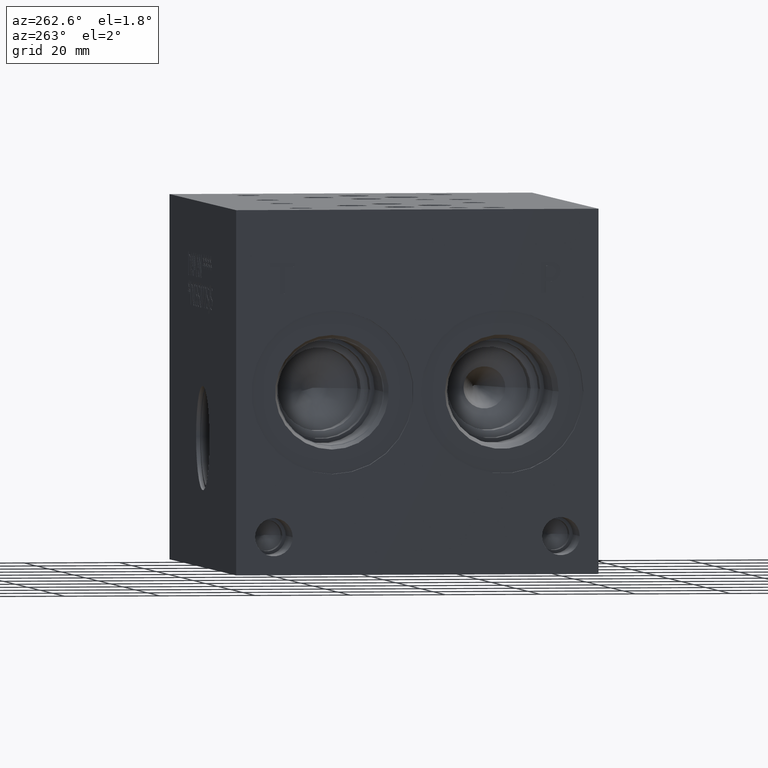
[diagram: clean part render]
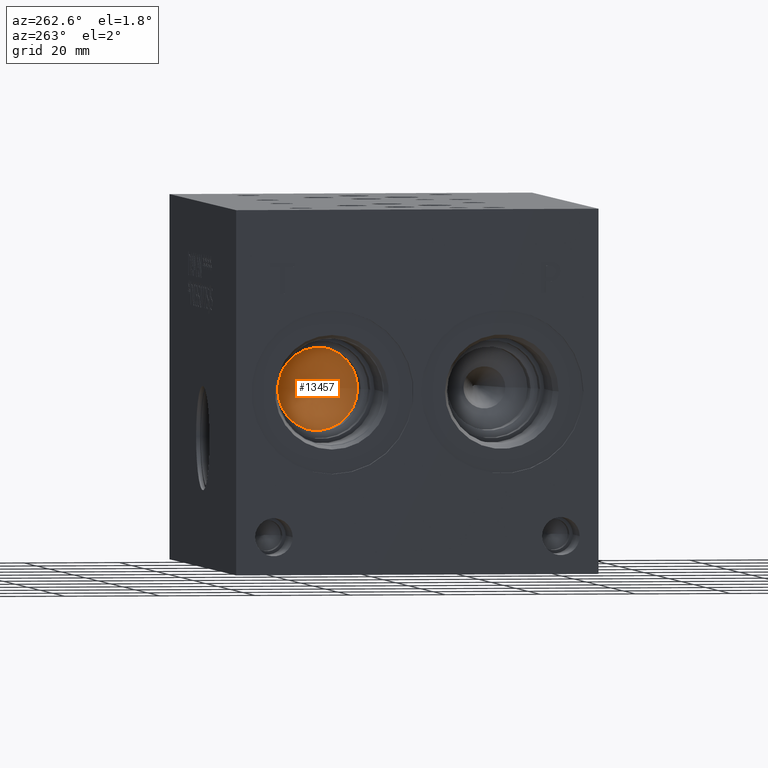
[diagram: same view with one face highlighted and labeled with its STEP entity id]
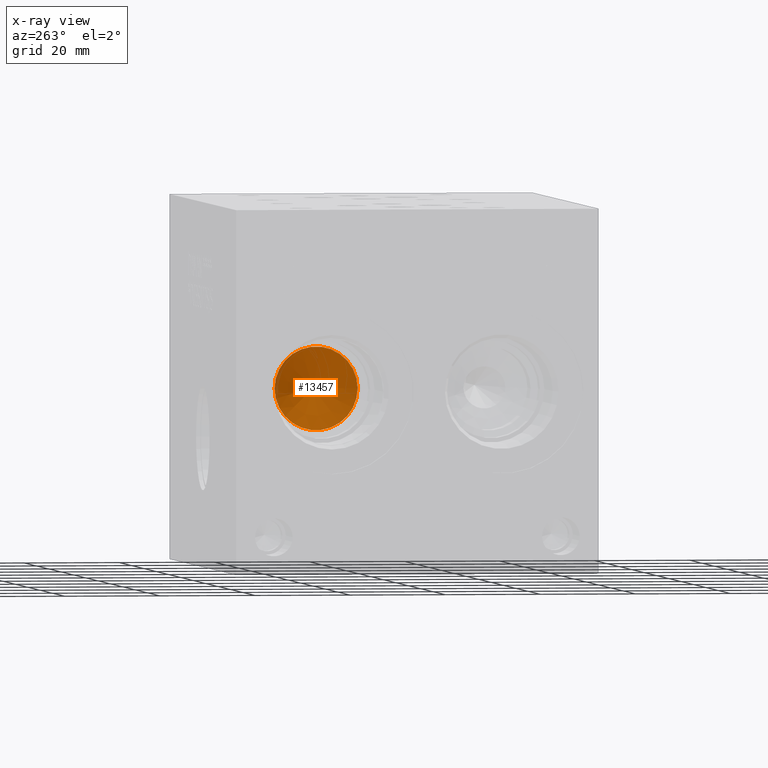
[diagram: x-ray of the same camera — body ghosted, the highlighted face saturated]
A machine part, auxiliary view. The second image highlights one B-rep face of the part: STEP entity #13457.
The next image is the same camera in x-ray: the body ghosted, the highlighted face saturated — about 3% of this face is hidden behind the body in this view.
In plain terms, the highlighted conical surface has half-angle 60 deg.
Its self-contained STEP definition (entity closure, byte-faithful):
#74=CONICAL_SURFACE('',#14287,4.3688,1.0471975511966);
#471=CIRCLE('',#14288,8.7376);
#472=CIRCLE('',#14289,8.7376);
#1841=FACE_OUTER_BOUND('',#2629,.T.);
#2629=EDGE_LOOP('',(#11800,#11801,#11802,#11803));
#3833=LINE('',#23400,#5009);
#5009=VECTOR('',#17093,4.3688);
#6286=VERTEX_POINT('',#23396);
#6287=VERTEX_POINT('',#23397);
#6288=VERTEX_POINT('',#23399);
#8151=EDGE_CURVE('',#6286,#6287,#471,.T.);
#8152=EDGE_CURVE('',#6287,#6288,#3833,.T.);
#8153=EDGE_CURVE('',#6287,#6286,#472,.T.);
#11800=ORIENTED_EDGE('',*,*,#8151,.T.);
#11801=ORIENTED_EDGE('',*,*,#8152,.T.);
#11802=ORIENTED_EDGE('',*,*,#8152,.F.);
#11803=ORIENTED_EDGE('',*,*,#8153,.T.);
#13457=ADVANCED_FACE('',(#1841),#74,.F.);
#14287=AXIS2_PLACEMENT_3D('',#23395,#17089,#17090);
#14288=AXIS2_PLACEMENT_3D('',#23398,#17091,#17092);
#14289=AXIS2_PLACEMENT_3D('',#23401,#17094,#17095);
#17089=DIRECTION('center_axis',(-1.,0.,0.));
#17090=DIRECTION('ref_axis',(0.,1.,0.));
#17091=DIRECTION('center_axis',(-1.,0.,0.));
#17092=DIRECTION('ref_axis',(0.,1.,0.));
#17093=DIRECTION('',(0.5,0.866025403784439,-1.06057523872491E-16));
#17094=DIRECTION('center_axis',(-1.,0.,0.));
#17095=DIRECTION('ref_axis',(0.,1.,0.));
#23395=CARTESIAN_POINT('Origin',(29.0057478560356,55.9562,38.1));
#23396=CARTESIAN_POINT('',(26.48342,64.6938,38.1));
#23397=CARTESIAN_POINT('',(26.48342,47.2186,38.1));
#23398=CARTESIAN_POINT('Origin',(26.48342,55.9562,38.1));
#23399=CARTESIAN_POINT('',(31.5280757120713,55.9562,38.1));
#23400=CARTESIAN_POINT('',(29.0057478560356,51.5874,38.1));
#23401=CARTESIAN_POINT('Origin',(26.48342,55.9562,38.1));